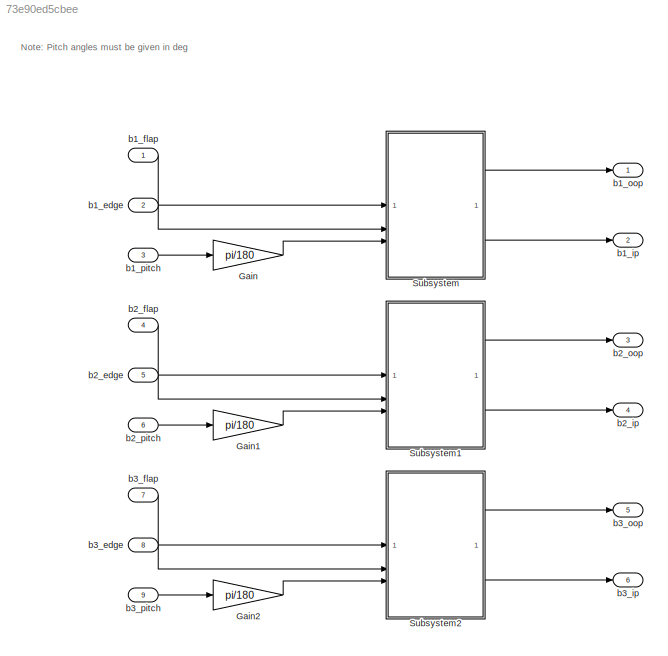
MODEL slx_73e90ed5cbee
KIND model
CONFIG AbsTol = auto
CONFIG EnableMultiTasking = off
CONFIG FixedStep = sample_time
CONFIG MaxStep = auto
CONFIG MinStep = auto
CONFIG RelTol = 1e-3
CONFIG SampleTimeConstraint = Unconstrained
CONFIG SolverName = FixedStepDiscrete
CONFIG StartTime = 0
CONFIG StopTime = duration
BLOCK [Gain] Gain
  Gain = pi/180
BLOCK [Gain] Gain1
  Gain = pi/180
BLOCK [Gain] Gain2
  Gain = pi/180
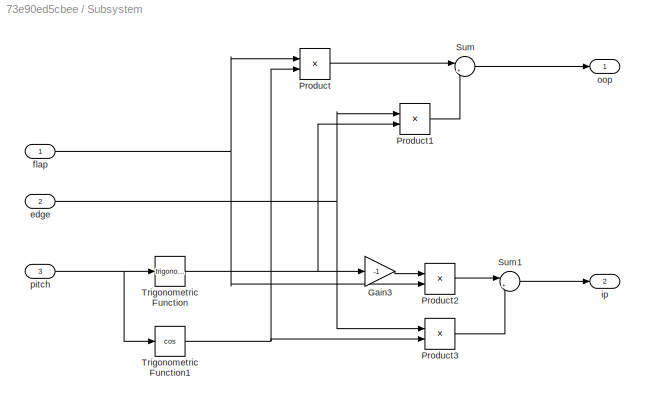
BLOCK [SubSystem] Subsystem
BLOCK [Gain] Subsystem/Gain3
  Gain = -1
BLOCK [Product] Subsystem/Product
BLOCK [Product] Subsystem/Product1
BLOCK [Product] Subsystem/Product2
BLOCK [Product] Subsystem/Product3
BLOCK [Sum] Subsystem/Sum
  Inputs = |++
BLOCK [Sum] Subsystem/Sum1
  Inputs = |++
BLOCK [Trigonometry] Subsystem/Trigonometric Function
BLOCK [Trigonometry] Subsystem/Trigonometric Function1
  Operator = cos
BLOCK [Inport] Subsystem/edge
  Port = 2
BLOCK [Inport] Subsystem/flap
BLOCK [Outport] Subsystem/ip
  Port = 2
BLOCK [Outport] Subsystem/oop
BLOCK [Inport] Subsystem/pitch
  Port = 3
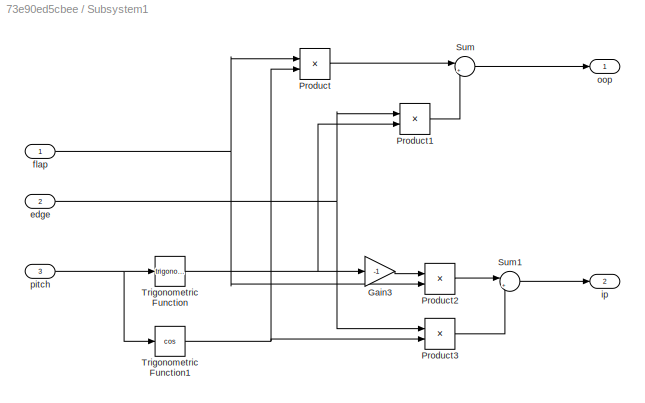
BLOCK [SubSystem] Subsystem1
BLOCK [Gain] Subsystem1/Gain3
  Gain = -1
BLOCK [Product] Subsystem1/Product
BLOCK [Product] Subsystem1/Product1
BLOCK [Product] Subsystem1/Product2
BLOCK [Product] Subsystem1/Product3
BLOCK [Sum] Subsystem1/Sum
  Inputs = |++
BLOCK [Sum] Subsystem1/Sum1
  Inputs = |++
BLOCK [Trigonometry] Subsystem1/Trigonometric Function
BLOCK [Trigonometry] Subsystem1/Trigonometric Function1
  Operator = cos
BLOCK [Inport] Subsystem1/edge
  Port = 2
BLOCK [Inport] Subsystem1/flap
BLOCK [Outport] Subsystem1/ip
  Port = 2
BLOCK [Outport] Subsystem1/oop
BLOCK [Inport] Subsystem1/pitch
  Port = 3
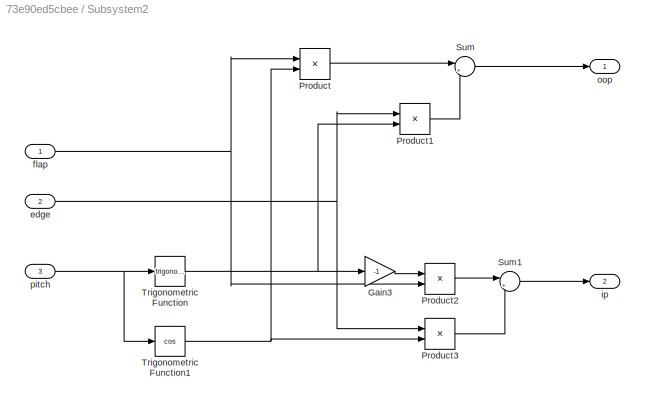
BLOCK [SubSystem] Subsystem2
BLOCK [Gain] Subsystem2/Gain3
  Gain = -1
BLOCK [Product] Subsystem2/Product
BLOCK [Product] Subsystem2/Product1
BLOCK [Product] Subsystem2/Product2
BLOCK [Product] Subsystem2/Product3
BLOCK [Sum] Subsystem2/Sum
  Inputs = |++
BLOCK [Sum] Subsystem2/Sum1
  Inputs = |++
BLOCK [Trigonometry] Subsystem2/Trigonometric Function
BLOCK [Trigonometry] Subsystem2/Trigonometric Function1
  Operator = cos
BLOCK [Inport] Subsystem2/edge
  Port = 2
BLOCK [Inport] Subsystem2/flap
BLOCK [Outport] Subsystem2/ip
  Port = 2
BLOCK [Outport] Subsystem2/oop
BLOCK [Inport] Subsystem2/pitch
  Port = 3
BLOCK [Inport] b1_edge
  Port = 2
BLOCK [Inport] b1_flap
BLOCK [Outport] b1_ip
  Port = 2
BLOCK [Outport] b1_oop
BLOCK [Inport] b1_pitch
  Port = 3
BLOCK [Inport] b2_edge
  Port = 5
BLOCK [Inport] b2_flap
  Port = 4
BLOCK [Outport] b2_ip
  Port = 4
BLOCK [Outport] b2_oop
  Port = 3
BLOCK [Inport] b2_pitch
  Port = 6
BLOCK [Inport] b3_edge
  Port = 8
BLOCK [Inport] b3_flap
  Port = 7
BLOCK [Outport] b3_ip
  Port = 6
BLOCK [Outport] b3_oop
  Port = 5
BLOCK [Inport] b3_pitch
  Port = 9
ANNOTATION (root): Note: Pitch angles must be given in deg
LINE Gain1:1 -> Subsystem1:3
LINE Gain2:1 -> Subsystem2:3
LINE Gain:1 -> Subsystem:3
LINE Subsystem/Gain3:1 -> Subsystem/Product2:1
LINE Subsystem/Product1:1 -> Subsystem/Sum:2
LINE Subsystem/Product2:1 -> Subsystem/Sum1:1
LINE Subsystem/Product3:1 -> Subsystem/Sum1:2
LINE Subsystem/Product:1 -> Subsystem/Sum:1
LINE Subsystem/Sum1:1 -> Subsystem/ip:1
LINE Subsystem/Sum:1 -> Subsystem/oop:1
NET Subsystem/Trigonometric Function1:1 -> Subsystem/Product3:2, Subsystem/Product:2
NET Subsystem/Trigonometric Function:1 -> Subsystem/Gain3:1, Subsystem/Product1:2
NET Subsystem/edge:1 -> Subsystem/Product1:1, Subsystem/Product3:1
NET Subsystem/flap:1 -> Subsystem/Product2:2, Subsystem/Product:1
NET Subsystem/pitch:1 -> Subsystem/Trigonometric Function1:1, Subsystem/Trigonometric Function:1
LINE Subsystem1/Gain3:1 -> Subsystem1/Product2:1
LINE Subsystem1/Product1:1 -> Subsystem1/Sum:2
LINE Subsystem1/Product2:1 -> Subsystem1/Sum1:1
LINE Subsystem1/Product3:1 -> Subsystem1/Sum1:2
LINE Subsystem1/Product:1 -> Subsystem1/Sum:1
LINE Subsystem1/Sum1:1 -> Subsystem1/ip:1
LINE Subsystem1/Sum:1 -> Subsystem1/oop:1
NET Subsystem1/Trigonometric Function1:1 -> Subsystem1/Product3:2, Subsystem1/Product:2
NET Subsystem1/Trigonometric Function:1 -> Subsystem1/Gain3:1, Subsystem1/Product1:2
NET Subsystem1/edge:1 -> Subsystem1/Product1:1, Subsystem1/Product3:1
NET Subsystem1/flap:1 -> Subsystem1/Product2:2, Subsystem1/Product:1
NET Subsystem1/pitch:1 -> Subsystem1/Trigonometric Function1:1, Subsystem1/Trigonometric Function:1
LINE Subsystem1:1 -> b2_oop:1
LINE Subsystem1:2 -> b2_ip:1
LINE Subsystem2/Gain3:1 -> Subsystem2/Product2:1
LINE Subsystem2/Product1:1 -> Subsystem2/Sum:2
LINE Subsystem2/Product2:1 -> Subsystem2/Sum1:1
LINE Subsystem2/Product3:1 -> Subsystem2/Sum1:2
LINE Subsystem2/Product:1 -> Subsystem2/Sum:1
LINE Subsystem2/Sum1:1 -> Subsystem2/ip:1
LINE Subsystem2/Sum:1 -> Subsystem2/oop:1
NET Subsystem2/Trigonometric Function1:1 -> Subsystem2/Product3:2, Subsystem2/Product:2
NET Subsystem2/Trigonometric Function:1 -> Subsystem2/Gain3:1, Subsystem2/Product1:2
NET Subsystem2/edge:1 -> Subsystem2/Product1:1, Subsystem2/Product3:1
NET Subsystem2/flap:1 -> Subsystem2/Product2:2, Subsystem2/Product:1
NET Subsystem2/pitch:1 -> Subsystem2/Trigonometric Function1:1, Subsystem2/Trigonometric Function:1
LINE Subsystem2:1 -> b3_oop:1
LINE Subsystem2:2 -> b3_ip:1
LINE Subsystem:1 -> b1_oop:1
LINE Subsystem:2 -> b1_ip:1
LINE b1_edge:1 -> Subsystem:2
LINE b1_flap:1 -> Subsystem:1
LINE b1_pitch:1 -> Gain:1
LINE b2_edge:1 -> Subsystem1:2
LINE b2_flap:1 -> Subsystem1:1
LINE b2_pitch:1 -> Gain1:1
LINE b3_edge:1 -> Subsystem2:2
LINE b3_flap:1 -> Subsystem2:1
LINE b3_pitch:1 -> Gain2:1
note: NET lines group one-source signal fan-out (src -> all destinations, sorted); 1:1 wires keep LINE
